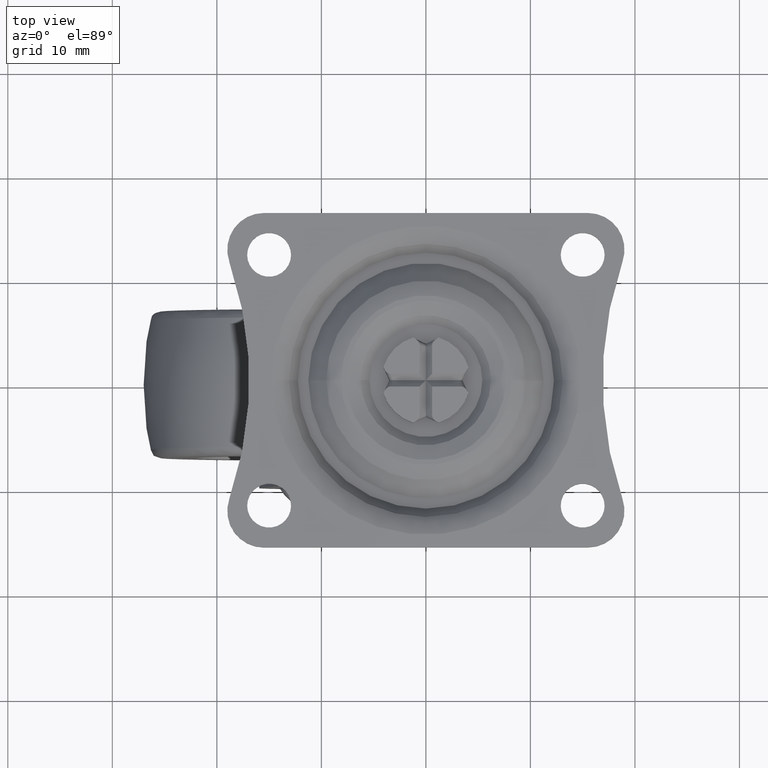
[diagram: clean part render]
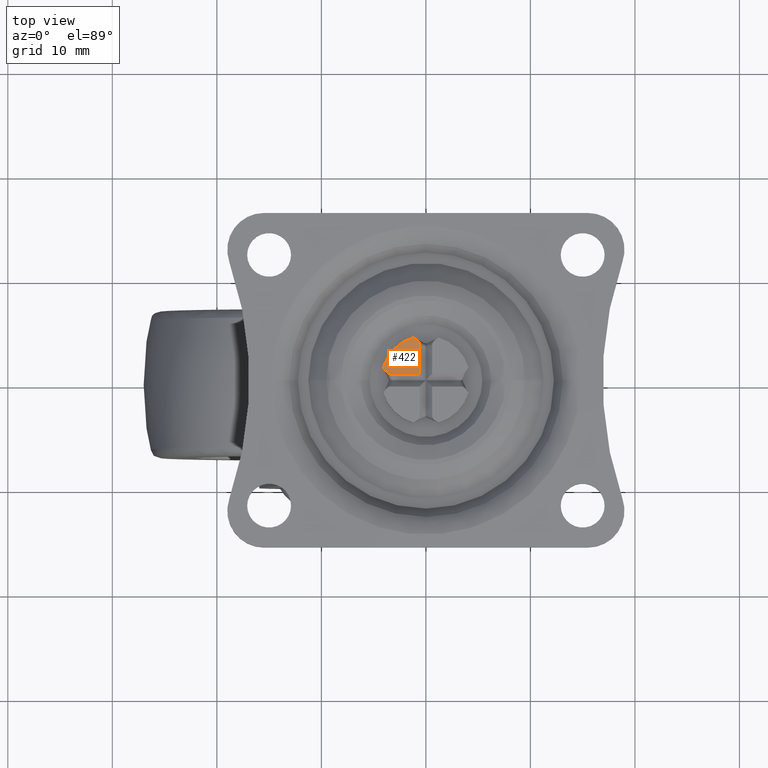
[diagram: same view with one face highlighted and labeled with its STEP entity id]
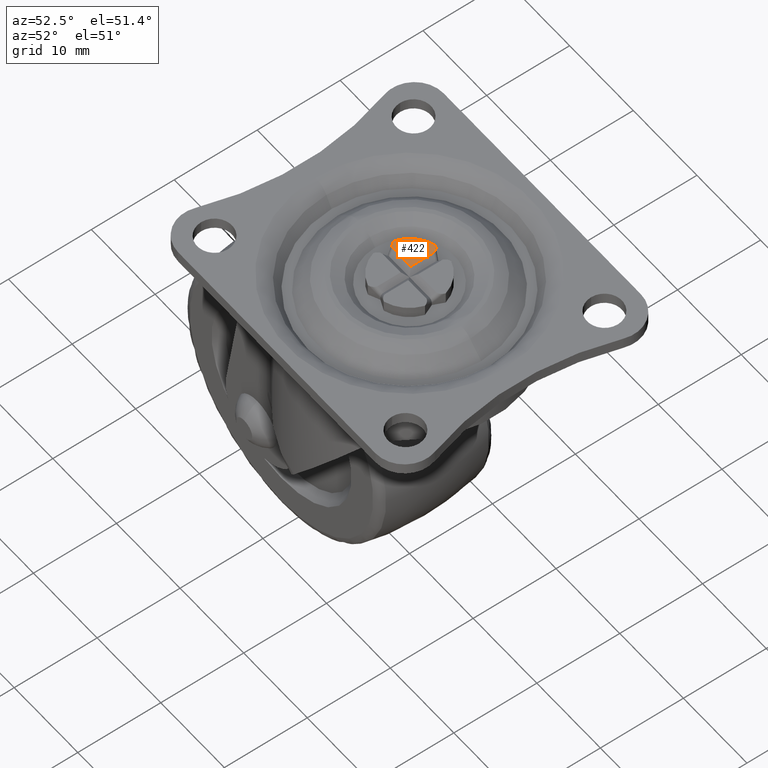
[diagram: same view with one face highlighted and labeled with its STEP entity id]
A machine part, top view. The second image highlights one B-rep face of the part: STEP entity #422.
A second angle (auxiliary view) of the same face is appended — the face is thin or edge-on in the first view.
In plain terms, the highlighted planar face has unit normal (0, 0, -1).
Its self-contained STEP definition (entity closure, byte-faithful):
#422=ADVANCED_FACE('',(#2504),#2503,.F.);
#2503=PLANE('',#5120);
#2504=FACE_OUTER_BOUND('',#5121,.T.);
#5117=CARTESIAN_POINT('',(-4.40821310114E+00,4.40820451161E+00,0.00000000000E+00));
#5118=DIRECTION('',(0.00000000000E+00,0.00000000000E+00,-1.00000000000E+00));
#5119=DIRECTION('',(1.00000000000E+00,0.00000000000E+00,0.00000000000E+00));
#5120=AXIS2_PLACEMENT_3D('',#5117,#5118,#5119);
#5121=EDGE_LOOP('',(#6439,#6440,#6441,#6442,#6443,#6444,#6445));
#6439=ORIENTED_EDGE('',*,*,#7157,.F.);
#6440=ORIENTED_EDGE('',*,*,#7158,.T.);
#6441=ORIENTED_EDGE('',*,*,#7159,.T.);
#6442=ORIENTED_EDGE('',*,*,#7160,.T.);
#6443=ORIENTED_EDGE('',*,*,#7161,.T.);
#6444=ORIENTED_EDGE('',*,*,#7162,.F.);
#6445=ORIENTED_EDGE('',*,*,#7142,.T.);
#7142=EDGE_CURVE('',#10500,#10507,#10514,.T.);
#7157=EDGE_CURVE('',#10614,#10507,#10615,.T.);
#7158=EDGE_CURVE('',#10614,#10621,#10622,.T.);
#7159=EDGE_CURVE('',#10621,#10628,#10629,.T.);
#7160=EDGE_CURVE('',#10628,#10635,#10636,.T.);
#7161=EDGE_CURVE('',#10635,#10642,#10643,.T.);
#7162=EDGE_CURVE('',#10500,#10642,#10649,.T.);
#10500=VERTEX_POINT('',#13928);
#10507=VERTEX_POINT('',#13932);
#10514=CIRCLE('',#13939,4.25000000000E+00);
#10614=VERTEX_POINT('',#13998);
#10615=LINE('',#13999,#14000);
#10621=VERTEX_POINT('',#14002);
#10622=(BOUNDED_CURVE() B_SPLINE_CURVE(2,(#14003,#14004,#14005),.UNSPECIFIED.,.F.,.F.) B_SPLINE_CURVE_WITH_KNOTS((3,3),(-1.57079632679E+00,-2.94191341651E-01),.UNSPECIFIED.) CURVE() GEOMETRIC_REPRESENTATION_ITEM() RATIONAL_B_SPLINE_CURVE((1.00000000000E+00,8.03108345463E-01,1.00000000000E+00)) REPRESENTATION_ITEM('') );
#10628=VERTEX_POINT('',#14006);
#10629=LINE('',#14007,#14008);
#10635=VERTEX_POINT('',#14010);
#10636=LINE('',#14011,#14012);
#10642=VERTEX_POINT('',#14014);
#10643=(BOUNDED_CURVE() B_SPLINE_CURVE(2,(#14015,#14016,#14017),.UNSPECIFIED.,.F.,.F.) B_SPLINE_CURVE_WITH_KNOTS((3,3),(-2.84740131194E+00,-1.57079632679E+00),.UNSPECIFIED.) CURVE() GEOMETRIC_REPRESENTATION_ITEM() RATIONAL_B_SPLINE_CURVE((1.00000000000E+00,8.03108345463E-01,1.00000000000E+00)) REPRESENTATION_ITEM('') );
#10649=LINE('',#14018,#14019);
#13928=CARTESIAN_POINT('',(-1.24998732920E+00,4.06200410146E+00,0.00000000000E+00));
#13932=CARTESIAN_POINT('',(-4.06201191013E+00,1.25000469658E+00,0.00000000000E+00));
#13936=CARTESIAN_POINT('',(3.38813178902E-21,-1.90000002647E-05,0.00000000000E+00));
#13937=DIRECTION('',(-0.00000000000E+00,0.00000000000E+00,1.00000000000E+00));
#13938=DIRECTION('',(-1.00000000000E+00,-0.00000000000E+00,-0.00000000000E+00));
#13939=AXIS2_PLACEMENT_3D('',#13936,#13937,#13938);
#13998=CARTESIAN_POINT('',(-3.99549793522E+00,1.10206983569E+00,0.00000000000E+00));
#13999=CARTESIAN_POINT('',(-3.99549793522E+00,1.10206983569E+00,0.00000000000E+00));
#14000=VECTOR('',#14001,1.62199975101E-01);
#14001=DIRECTION('',(-4.10073890989E-01,9.12052303286E-01,0.00000000000E+00));
#14002=CARTESIAN_POINT('',(-3.38050829647E+00,6.00000000000E-01,0.00000000000E+00));
#14003=CARTESIAN_POINT('',(-3.99549793522E+00,1.10206983569E+00,0.00000000000E+00));
#14004=CARTESIAN_POINT('',(-3.76975898326E+00,6.00000000000E-01,0.00000000000E+00));
#14005=CARTESIAN_POINT('',(-3.38050829647E+00,6.00000000000E-01,0.00000000000E+00));
#14006=CARTESIAN_POINT('',(-6.00000000000E-01,6.00000000000E-01,2.77555756156E-14));
#14007=CARTESIAN_POINT('',(-3.38050829647E+00,6.00000000000E-01,0.00000000000E+00));
#14008=VECTOR('',#14009,2.78050829647E+00);
#14009=DIRECTION('',(1.00000000000E+00,0.00000000000E+00,0.00000000000E+00));
#14010=CARTESIAN_POINT('',(-6.00000000000E-01,3.38050829647E+00,0.00000000000E+00));
#14011=CARTESIAN_POINT('',(-6.00000000000E-01,6.00000000000E-01,0.00000000000E+00));
#14012=VECTOR('',#14013,2.78050829647E+00);
#14013=DIRECTION('',(0.00000000000E+00,1.00000000000E+00,0.00000000000E+00));
#14014=CARTESIAN_POINT('',(-1.10206983569E+00,3.99549793522E+00,0.00000000000E+00));
#14015=CARTESIAN_POINT('',(-6.00000000000E-01,3.38050829647E+00,0.00000000000E+00));
#14016=CARTESIAN_POINT('',(-6.00000000000E-01,3.76975898326E+00,0.00000000000E+00));
#14017=CARTESIAN_POINT('',(-1.10206983569E+00,3.99549793522E+00,0.00000000000E+00));
#14018=CARTESIAN_POINT('',(-1.24998732920E+00,4.06200410146E+00,0.00000000000E+00));
#14019=VECTOR('',#14020,1.62180933019E-01);
#14020=DIRECTION('',(9.12052303286E-01,-4.10073890989E-01,0.00000000000E+00));